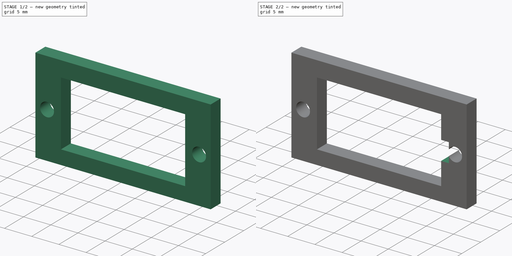
[diagram: build sequence overview — one tinted view per stage of 2, left to right]
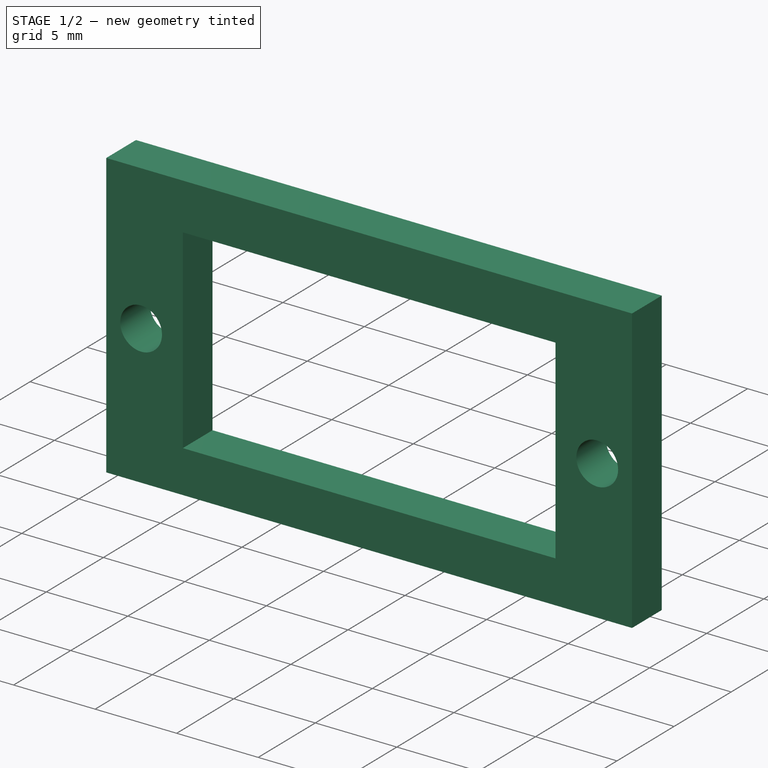
[diagram: stage 1 of 2 — iso view after this stage's code; geometry added in this stage tinted green]
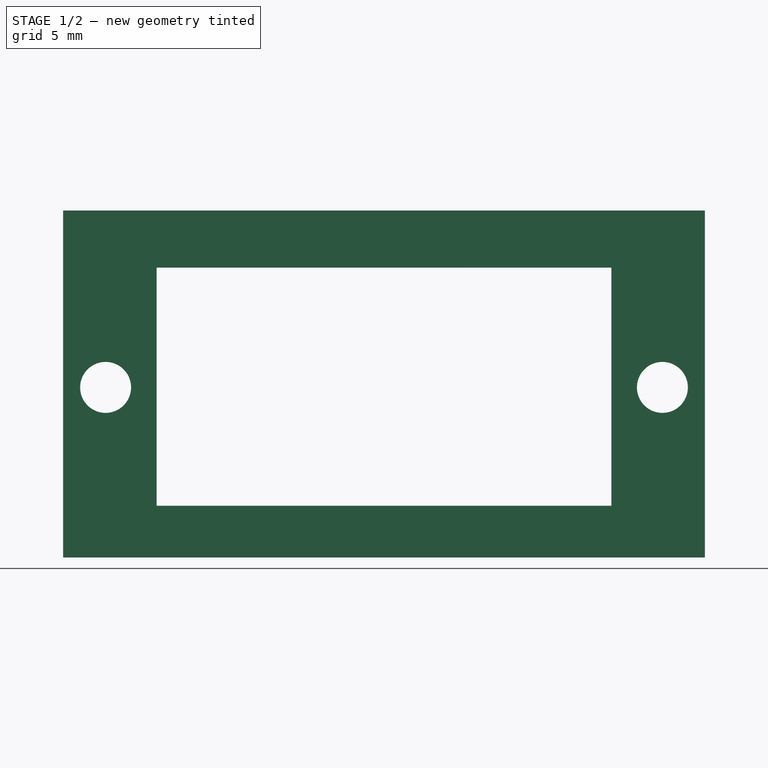
[diagram: stage 1 of 2 — front view after this stage's code; geometry added in this stage tinted green]
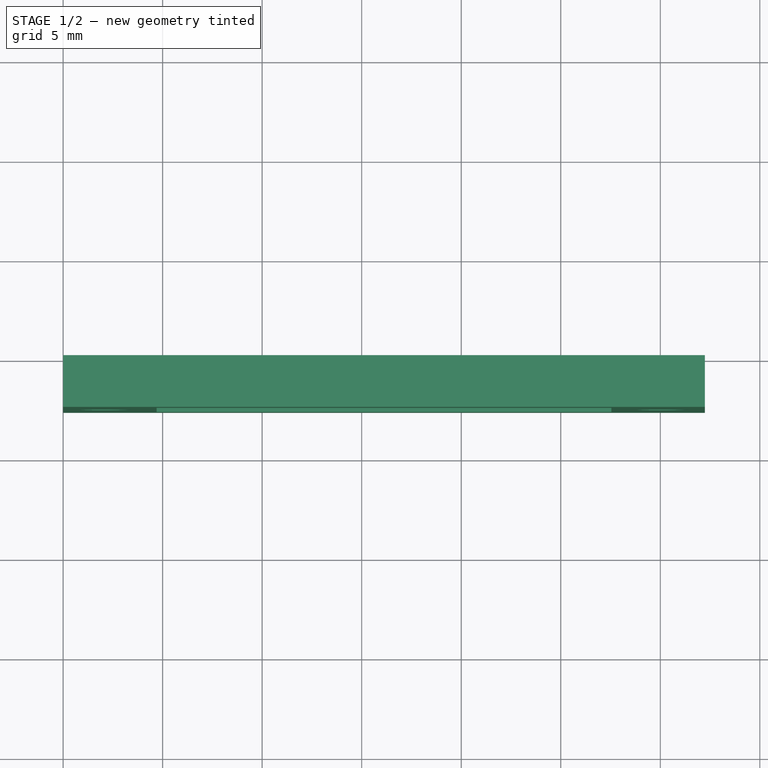
[diagram: stage 1 of 2 — top view after this stage's code; geometry added in this stage tinted green]
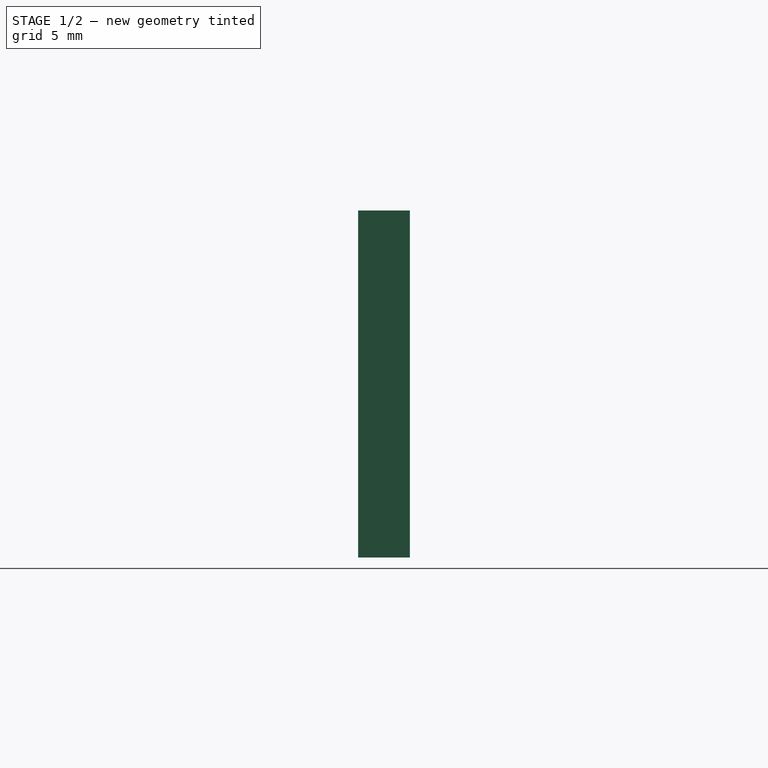
[diagram: stage 1 of 2 — right view after this stage's code; geometry added in this stage tinted green]
FCSTD DOCUMENT  (FreeCAD 0.19R)
Label: bracket-1
License: All rights reserved
LicenseURL: http://en.wikipedia.org/wiki/All_rights_reserved
objects: Sketcher::SketchObject×3, PartDesign::Pocket×2, PartDesign::Pad×1, PartDesign::Body×1
note: 10 computed .brp shape members not serialized (recipe doc carries the construction recipe); baked Part::Feature solids carry a one-line shape summary decoded from their .brp

FEATURE [Sketcher::SketchObject] Sketch
  FullyConstrained = false
  MapMode = 5
  Placement = pos=(0,0,0) rot=(1,0,0;1.5708rad)
  Support = -> [XZ_Plane]
  sketch-geometry (4):
    g0: LineSegment StartX=0 StartY=0 StartZ=0 EndX=32.2409 EndY=0 EndZ=0
    g1: LineSegment StartX=32.2409 StartY=0 StartZ=0 EndX=32.2409 EndY=17.43 EndZ=0
    g2: LineSegment StartX=32.2409 StartY=17.43 StartZ=0 EndX=0 EndY=17.43 EndZ=0
    g3: LineSegment StartX=0 StartY=17.43 StartZ=0 EndX=0 EndY=0 EndZ=0
  constraints (10):
    c: Coincident(g0,g1)
    c: Coincident(g1,g2)
    c: Coincident(g2,g3)
    c: Coincident(g3,g0)
    c: Horizontal(g0)
    c: Horizontal(g2)
    c: Vertical(g1)
    c: Vertical(g3)
    c: Coincident(g0,g-1)
    c: Distance(g1) = 17.43
FEATURE [PartDesign::Pad] Pad
  Direction = (1,1,1)
  Length = 2.6
  Length2 = 100
  Placement = pos=(0,0,0) rot=(1,0,0;1.5708rad)
  Profile = -> Sketch
  Type = 0
FEATURE [Sketcher::SketchObject] Sketch002
  ExternalGeometry = -> [Pad]
  FullyConstrained = false
  MapMode = 5
  Placement = pos=(0,-2.6,-6e-16) rot=(1,0,0;1.5708rad)
  Support = -> [Pad]
  sketch-geometry (16):
    g0: LineSegment StartX=4.69545 StartY=14.695 StartZ=0 EndX=27.5454 EndY=14.695 EndZ=0
    g1: LineSegment StartX=27.5454 StartY=2.735 StartZ=0 EndX=4.69545 EndY=2.735 EndZ=0
    g2: LineSegment StartX=4.69545 StartY=2.735 StartZ=0 EndX=4.69545 EndY=14.695 EndZ=0
    g3: GeomPoint X=30.1059 Y=8.54406 Z=0
    g4: Circle CenterX=30.1068 CenterY=8.715 CenterZ=0 NormalX=0 NormalY=0 NormalZ=1 AngleXU=0 Radius=1.28
    g5: GeomPoint X=2.13496 Y=8.54406 Z=0
    g6: Circle CenterX=2.13411 CenterY=8.715 CenterZ=0 NormalX=0 NormalY=0 NormalZ=1 AngleXU=0 Radius=1.28
    g7: LineSegment StartX=27.5454 StartY=14.695 StartZ=0 EndX=27.5454 EndY=2.735 EndZ=0
    g8: LineSegment StartX=0 StartY=17.43 StartZ=0 EndX=4.69545 EndY=14.695 EndZ=0
    g9: LineSegment StartX=4.69545 StartY=2.735 StartZ=0 EndX=0 EndY=0 EndZ=0
    g10: LineSegment StartX=27.5454 StartY=2.735 StartZ=0 EndX=32.2409 EndY=9e-16 EndZ=0
    g11: LineSegment StartX=32.2409 StartY=17.43 StartZ=0 EndX=27.5454 EndY=14.695 EndZ=0
    g12: LineSegment StartX=27.5454 StartY=14.695 StartZ=0 EndX=30.1068 EndY=8.715 EndZ=0
    g13: LineSegment StartX=30.1068 StartY=8.715 StartZ=0 EndX=27.5454 EndY=2.735 EndZ=0
    g14: LineSegment StartX=4.69545 StartY=14.695 StartZ=0 EndX=2.13411 EndY=8.715 EndZ=0
    g15: LineSegment StartX=2.13411 StartY=8.715 StartZ=0 EndX=4.69545 EndY=2.735 EndZ=0
  constraints (32):
    c: Coincident(g1,g2)
    c: Coincident(g2,g0)
    c: Horizontal(g0)
    c: Horizontal(g1)
    c: Vertical(g2)
    c: DistanceX(g0,g0) = 22.85
    c: DistanceY(g1,g0) = 11.96
    c: Radius(g4) = 1.28
    c: Radius(g6) = 1.28
    c: Coincident(g7,g0)
    c: Coincident(g7,g1)
    c: Vertical(g7)
    c: Coincident(g8,g-3)
    c: Coincident(g8,g0)
    c: Coincident(g9,g1)
    c: Coincident(g9,g-1)
    c: Coincident(g10,g1)
    c: Coincident(g10,g-4)
    c: Coincident(g11,g-4)
    c: Coincident(g11,g0)
    c: Equal(g11,g8)
    c: Equal(g8,g9)
    c: Coincident(g12,g0)
    c: Coincident(g12,g4)
    c: Coincident(g13,g4)
    c: Coincident(g13,g1)
    c: Equal(g12,g13)
    c: Coincident(g14,g0)
    c: Coincident(g14,g6)
    c: Coincident(g15,g6)
    c: Coincident(g15,g1)
    c: Equal(g14,g15)
FEATURE [PartDesign::Pocket] Pocket
  BaseFeature = -> Pad
  Length = 2.6
  Length2 = 100
  Placement = pos=(0,0,0) rot=(1,0,0;1.5708rad)
  Profile = -> Sketch002
  Type = 0
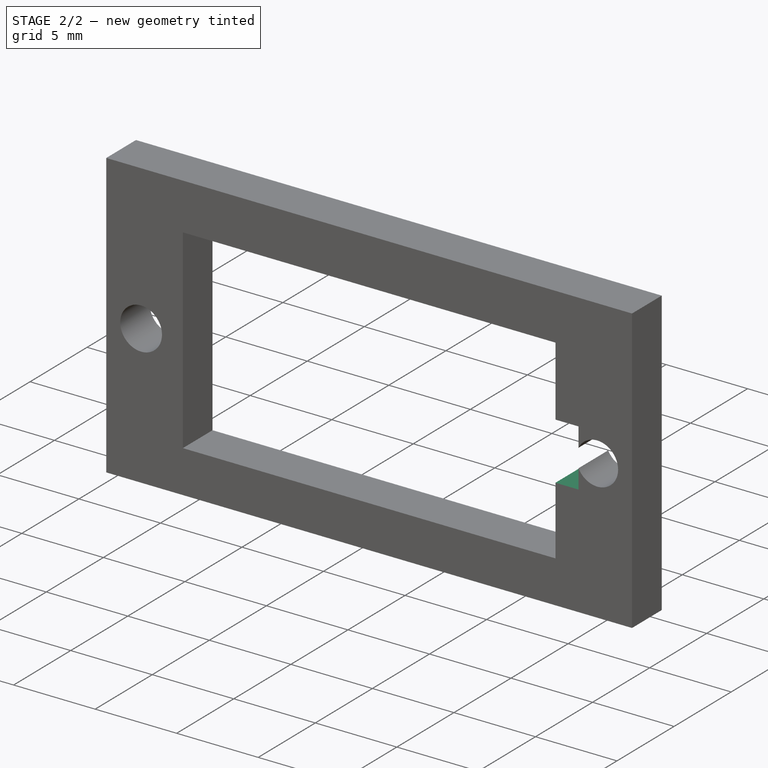
[diagram: stage 2 of 2 — iso view after this stage's code; geometry added in this stage tinted green]
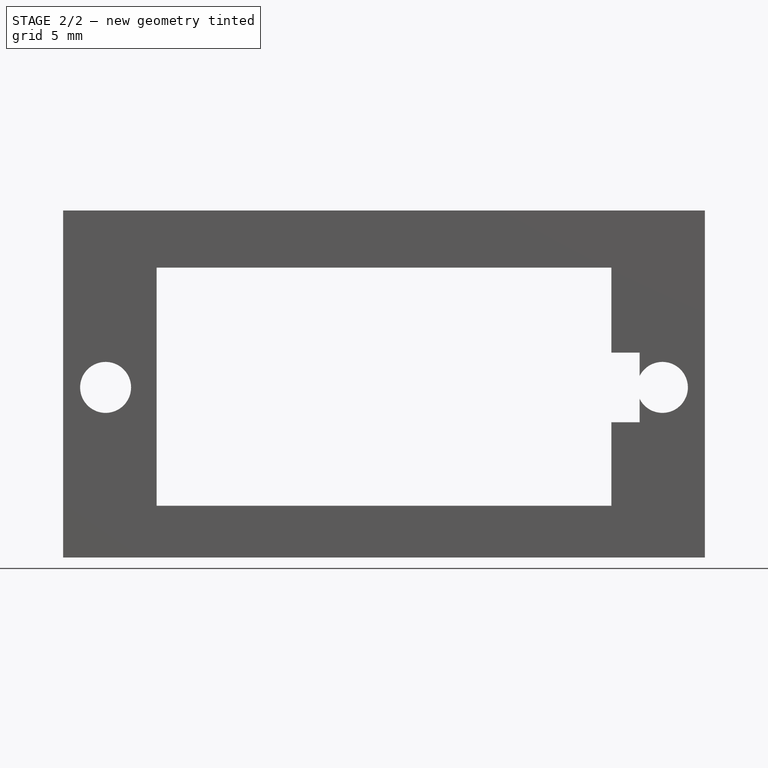
[diagram: stage 2 of 2 — front view after this stage's code; geometry added in this stage tinted green]
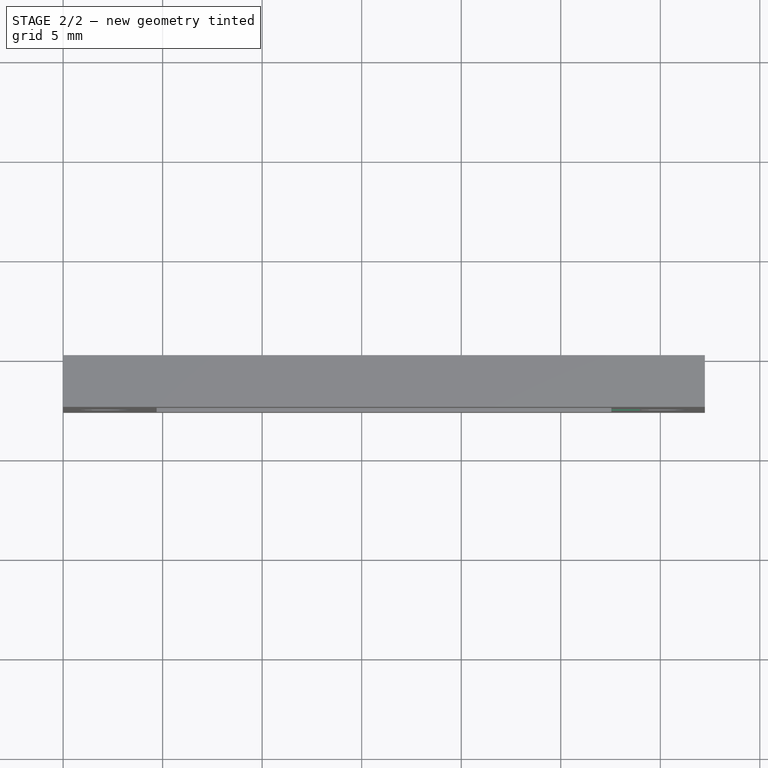
[diagram: stage 2 of 2 — top view after this stage's code; geometry added in this stage tinted green]
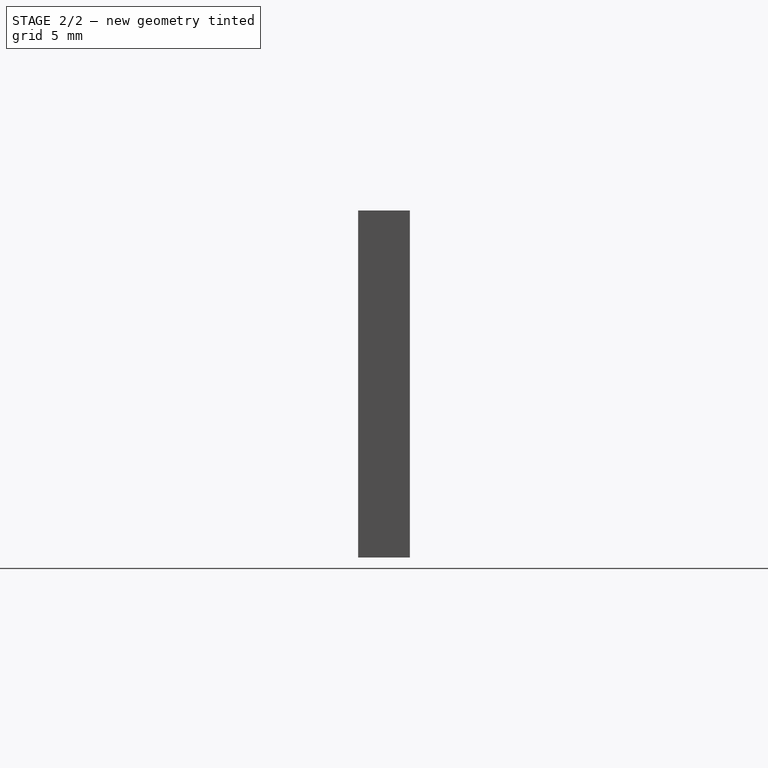
[diagram: stage 2 of 2 — right view after this stage's code; geometry added in this stage tinted green]
FEATURE [Sketcher::SketchObject] Sketch003
  ExternalGeometry = -> [Pocket]
  FullyConstrained = false
  MapMode = 5
  Placement = pos=(0,0,0) rot=(-1,0,0;1.5708rad)
  Support = -> [Pocket]
  sketch-geometry (4):
    g0: LineSegment StartX=26.9487 StartY=-6.79406 StartZ=0 EndX=28.9587 EndY=-6.79406 EndZ=0
    g1: LineSegment StartX=28.9587 StartY=-6.79406 StartZ=0 EndX=28.9587 EndY=-10.2941 EndZ=0
    g2: LineSegment StartX=28.9587 StartY=-10.2941 StartZ=0 EndX=26.9487 EndY=-10.2941 EndZ=0
    g3: LineSegment StartX=26.9487 StartY=-10.2941 StartZ=0 EndX=26.9487 EndY=-6.79406 EndZ=0
  constraints (14):
    c: Coincident(g0,g1)
    c: Coincident(g1,g2)
    c: Coincident(g2,g3)
    c: Coincident(g3,g0)
    c: Horizontal(g0)
    c: Horizontal(g2)
    c: Vertical(g1)
    c: Vertical(g3)
    c: DistanceY(g1,g1) = 3.5
    c: DistanceX(g0,g0) = 2.01
    c: Distance(g-4) = 11.96
    c: Distance(g-3) = 22.85
    c: DistanceX(g-1,g-3) = 4.69545
    c: DistanceY(g-3,g-1) = 2.60148
FEATURE [PartDesign::Pocket] Pocket001
  BaseFeature = -> Pocket
  Length = 5
  Length2 = 100
  Placement = pos=(0,0,0) rot=(1,0,0;1.5708rad)
  Profile = -> Sketch003
  Type = 0
FEATURE [PartDesign::Body] Body
  Group = -> [Sketch,Pad,Sketch002,Pocket,Sketch003,Pocket001]
  Origin = -> Origin
  Tip = -> Pocket001
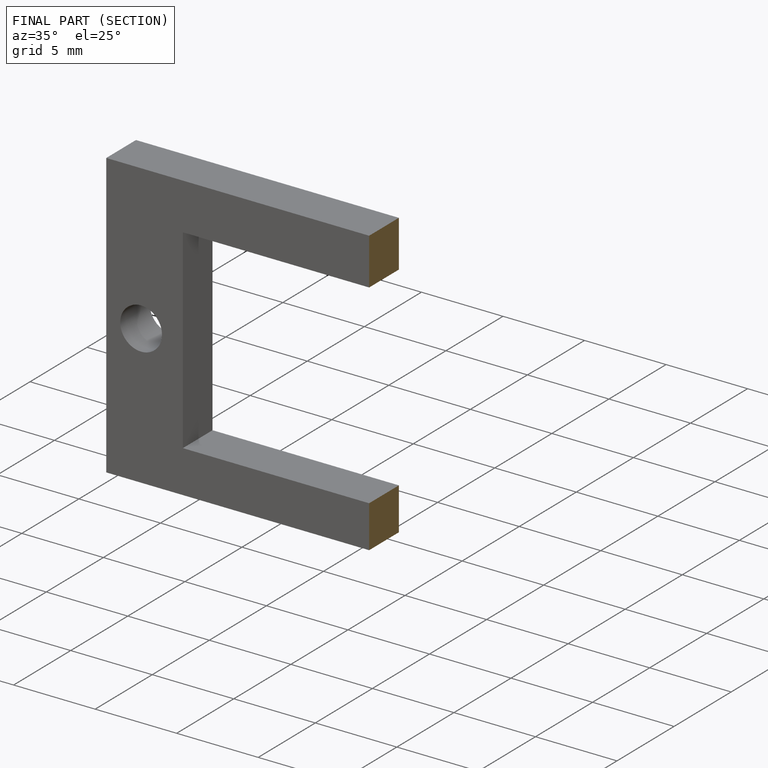
[diagram: finished part — half-section view (interior)]
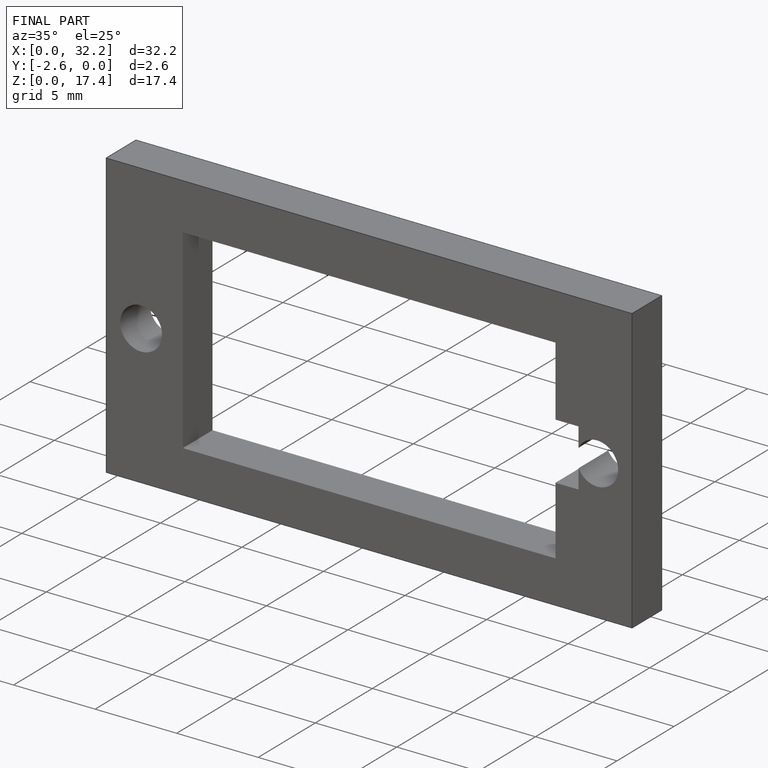
[diagram: finished part — iso view with bounding-box wireframe]
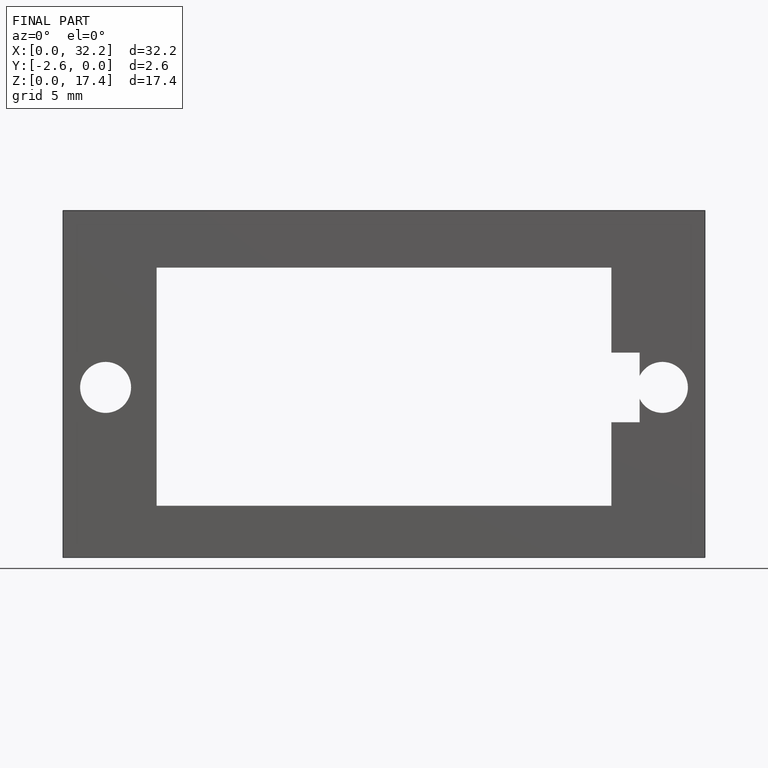
[diagram: finished part — front view with bounding-box wireframe]
